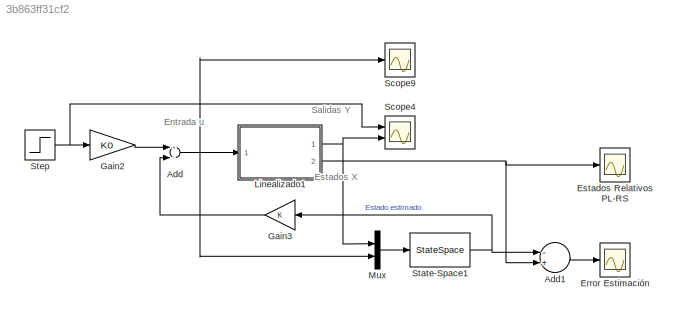
MODEL slx_3b863ff31cf2
KIND model
CONFIG AbsTol = auto
CONFIG EnableMultiTasking = off
CONFIG FixedStep = auto
CONFIG MaxStep = auto
CONFIG MinStep = auto
CONFIG RelTol = 1e-3
CONFIG SampleTimeConstraint = Unconstrained
CONFIG Solver = VariableStepAuto
CONFIG SolverName = VariableStepAuto
CONFIG StartTime = 0.0
CONFIG StopTime = 10.0
BLOCK [Sum] Add
  InputSameDT = off
  Inputs = +-
  OutDataTypeStr = Inherit: Inherit via internal rule
  Ports = [2, 1]
  SaturateOnIntegerOverflow = off
BLOCK [Sum] Add1
  InputSameDT = off
  Inputs = -+
  OutDataTypeStr = Inherit: Inherit via internal rule
  Ports = [2, 1]
  SaturateOnIntegerOverflow = off
BLOCK [Scope] Error Estimación
  Floating = off
  NumInputPorts = 1
  Ports = [1]
  ScopeSpecificationString = Simulink.scopes.TimeScopeBlockCfg('CurrentConfiguration', extmgr.ConfigurationSet(extmgr.Configuration('Core','General UI',true,'FigureColor',[0 0 0]),extmgr.Configuration('Core','Source UI',true),extmgr.Configuration('Sources','WiredSimulink',true,'DataLoggingVariableName','ScopeData1'),extmgr.Configuration('Visuals','Time Domain',true,'SerializedDisplays',{struct('MinYLimReal','-36.95739','MaxYL...<+2114ch>
BLOCK [Scope] Estados Relativos PL-RS
  Floating = off
  NumInputPorts = 1
  Ports = [1]
  ScopeSpecificationString = Simulink.scopes.TimeScopeBlockCfg('CurrentConfiguration', extmgr.ConfigurationSet(extmgr.Configuration('Core','General UI',true,'FigureColor',[0 0 0]),extmgr.Configuration('Core','Source UI',true),extmgr.Configuration('Sources','WiredSimulink',true,'DataLoggingVariableName','ScopeData4'),extmgr.Configuration('Visuals','Time Domain',true,'SerializedDisplays',{struct('MinYLimReal','-36.95739','MaxYL...<+2162ch>
BLOCK [Gain] Gain2
  Gain = K0
  Multiplication = Matrix(K*u)
  OutDataTypeStr = Inherit: Inherit via internal rule
  ParamDataTypeStr = Inherit: Inherit via internal rule
  SaturateOnIntegerOverflow = off
BLOCK [Gain] Gain3
  Gain = K
  Multiplication = Matrix(K*u)
  OutDataTypeStr = Inherit: Inherit via internal rule
  ParamDataTypeStr = Inherit: Inherit via internal rule
  SaturateOnIntegerOverflow = off
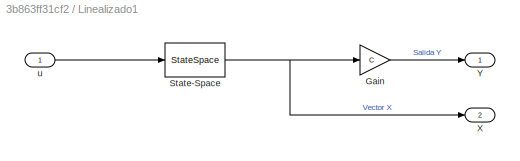
BLOCK [SubSystem] Linealizado1
  Ports = [1, 2]
  RequestExecContextInheritance = off
BLOCK [Gain] Linealizado1/Gain
  Gain = C
  Multiplication = Matrix(K*u)
  OutDataTypeStr = Inherit: Inherit via internal rule
  ParamDataTypeStr = Inherit: Inherit via internal rule
  SaturateOnIntegerOverflow = off
BLOCK [StateSpace] Linealizado1/State-Space
  A = Al
  B = Bl
  C = eye(4)
  D = zeros(4,1)
  InitialCondition = XI
  Ports = [1, 1]
BLOCK [Outport] Linealizado1/X
  IconDisplay = Port number
  Port = 2
BLOCK [Outport] Linealizado1/Y
  IconDisplay = Port number
BLOCK [Inport] Linealizado1/u
  IconDisplay = Port number
BLOCK [Mux] Mux
  DisplayOption = bar
  Inputs = 2
  Ports = [2, 1]
BLOCK [Scope] Scope4
  Floating = off
  NumInputPorts = 2
  Ports = [2]
  ScopeSpecificationString = Simulink.scopes.TimeScopeBlockCfg('CurrentConfiguration', extmgr.ConfigurationSet(extmgr.Configuration('Core','General UI',true,'FigureColor',[0 0 0]),extmgr.Configuration('Core','Source UI',true),extmgr.Configuration('Sources','WiredSimulink',true,'DataLoggingVariableName','ScopeData5'),extmgr.Configuration('Visuals','Time Domain',true,'SerializedDisplays',{struct('MinYLimReal','-1.40591','MaxYLi...<+1841ch>
BLOCK [Scope] Scope9
  Floating = off
  NumInputPorts = 1
  Ports = [1]
  ScopeSpecificationString = Simulink.scopes.TimeScopeBlockCfg('CurrentConfiguration', extmgr.ConfigurationSet(extmgr.Configuration('Core','General UI',true,'FigureColor',[0 0 0]),extmgr.Configuration('Core','Source UI',true),extmgr.Configuration('Sources','WiredSimulink',true),extmgr.Configuration('Visuals','Time Domain',true,'SerializedDisplays',{struct('MinYLimReal','-14.00092','MaxYLimReal','62.27656','YLabelReal','','Min...<+1643ch>
BLOCK [StateSpace] State-Space1
  A = Al-L*C
  B = [L,Bl]
  C = eye(4)
  D = zeros(4,2)
  InitialCondition = XI
  Ports = [1, 1]
BLOCK [Step] Step
  After = Ref
  SampleTime = 0
  Time = 0
ANNOTATION (root): Entrada u
ANNOTATION (root): Estados X
ANNOTATION (root): Salidas Y
LINE Add1:1 -> Error Estimación:1
NET Add:1 -> Linealizado1:1, Mux:2, Scope9:1
LINE Gain2:1 -> Add:1
LINE Gain3:1 -> Add:2
LINE Linealizado1/Gain:1 -> Linealizado1/Y:1
NET Linealizado1/State-Space:1 -> Linealizado1/Gain:1, Linealizado1/X:1
LINE Linealizado1/u:1 -> Linealizado1/State-Space:1
NET Linealizado1:1 -> Mux:1, Scope4:2
NET Linealizado1:2 -> Add1:2, Estados Relativos PL-RS:1
LINE Mux:1 -> State-Space1:1
NET State-Space1:1 -> Add1:1, Gain3:1
NET Step:1 -> Gain2:1, Scope4:1
note: NET lines group one-source signal fan-out (src -> all destinations, sorted); 1:1 wires keep LINE
